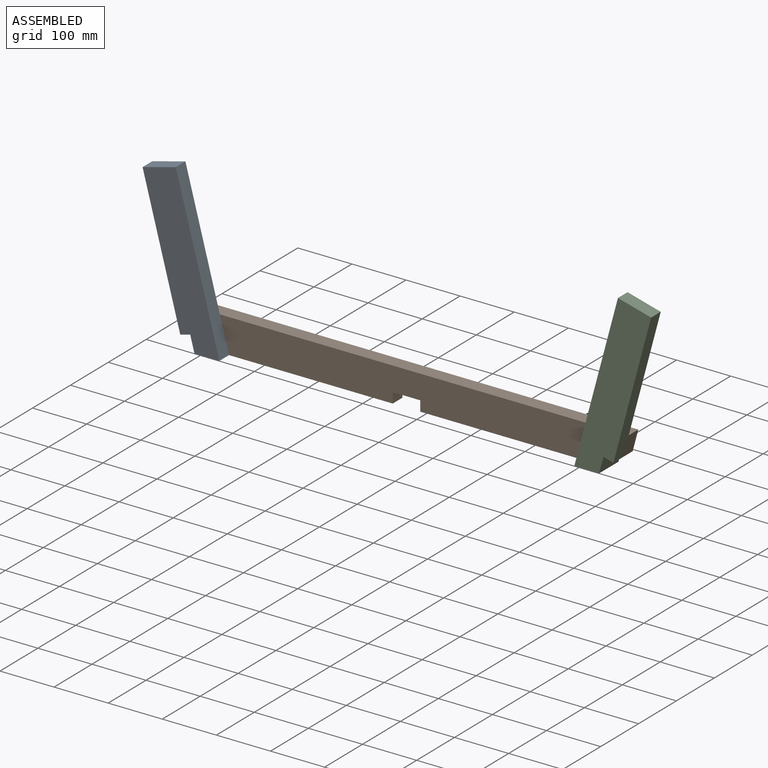
[diagram: assembled view]
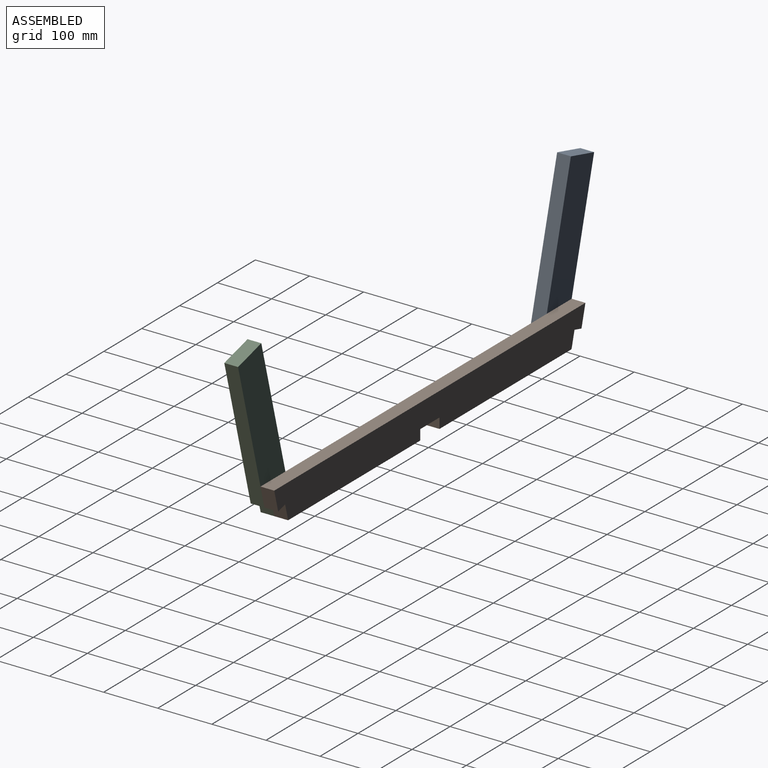
[diagram: assembled view, second angle]
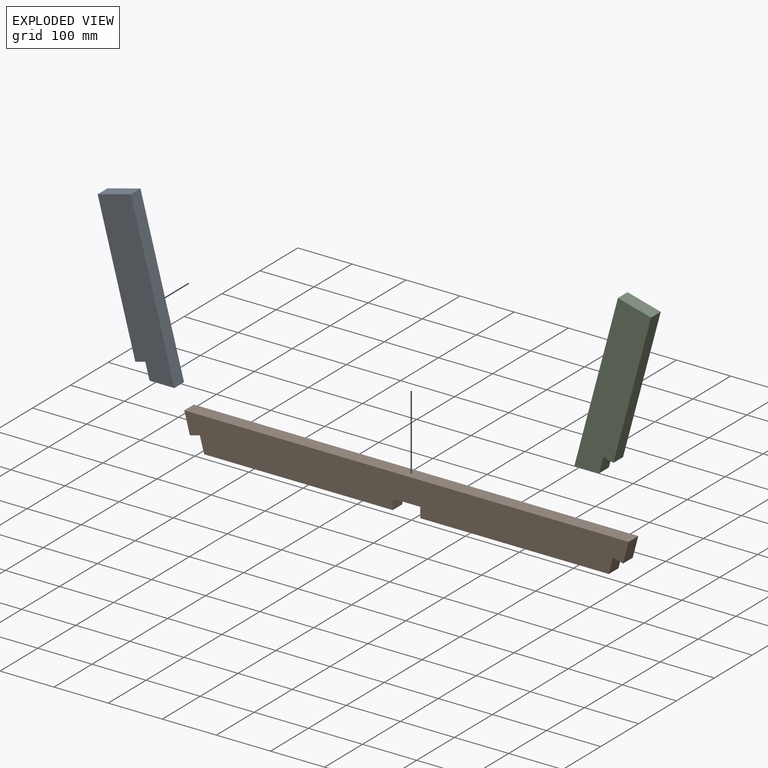
[diagram: exploded view]
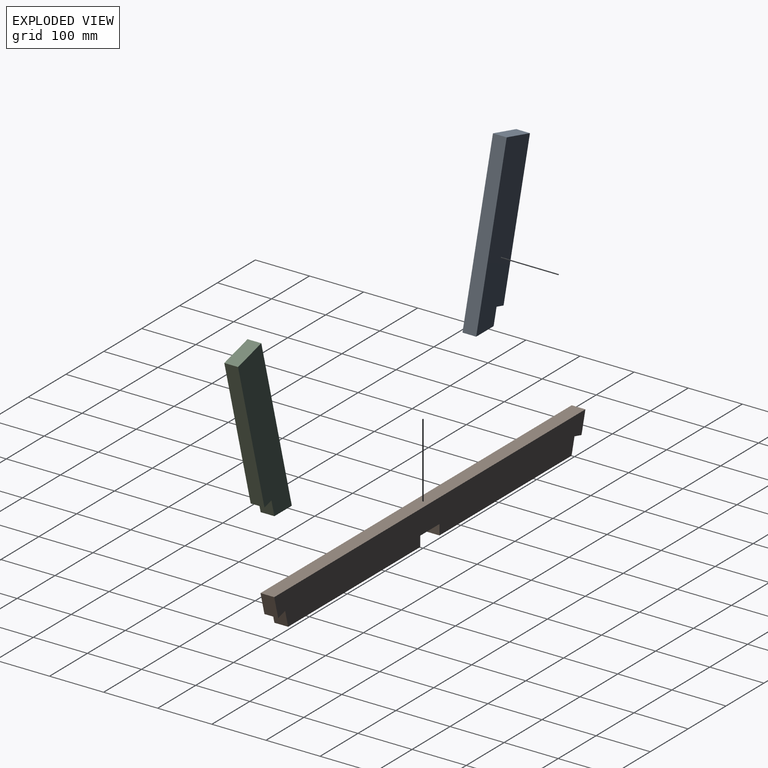
[diagram: exploded view, second angle]
ASSEMBLY  parts=3 mates=2
PART A: 8 faces, bbox 141.9x25.4x302.1 mm
  f0: plane 261.21x69.66mm, normal (-0.97,0,-0.26), area 6866.5mm2, adj f1,f5,f6,f7
  f1: plane 25.4x18.41mm, normal (0.26,0,-0.97), area 483.9mm2, adj f0,f2,f6,f7
  f2: plane 29.45x25.4mm, normal (-0.97,0,-0.26), area 774.2mm2, adj f1,f3,f6,f7
  f3: plane 46x25.4mm, normal (0,0,-1), area 1168.5mm2, adj f2,f4,f6,f7
  f4: plane 302.11x80.56mm, normal (0.97,0,0.26), area 7941.8mm2, adj f3,f5,f6,f7
  f5: plane 61.36x25.4mm, normal (-0.26,0,0.97), area 1612.9mm2, adj f0,f4,f6,f7
  f6: plane 302.11x141.92mm, normal (0,-1,0), area 18784.6mm2, adj f0,f1,f2,f3,f4,f5
  f7: plane 302.11x141.92mm, normal (0,1,0), area 18784.6mm2, adj f0,f1,f2,f3,f4,f5
PART B: 14 faces, bbox 821.3x25.4x63.5 mm
  f0: plane 348.58x25.4mm, normal (0,0,-1), area 8854mm2, adj f1,f11,f12,f13
  f1: plane 25.4x19.05mm, normal (1,0,0), area 483.9mm2, adj f0,f2,f12,f13
  f2: plane 50.8x25.4mm, normal (0,0,-1), area 1290.3mm2, adj f1,f3,f12,f13
  f3: plane 25.4x19.05mm, normal (-1,0,0), area 483.9mm2, adj f2,f4,f12,f13
  f4: plane 348.58x25.4mm, normal (0,0,-1), area 8854mm2, adj f3,f5,f12,f13
  f5: plane 29.45x25.4mm, normal (0.97,0,-0.26), area 774.2mm2, adj f4,f6,f12,f13
  f6: plane 25.4x18.41mm, normal (-0.26,0,-0.97), area 483.9mm2, adj f5,f7,f12,f13
  f7: plane 38.96x25.4mm, normal (0.97,0,-0.26), area 1024.1mm2, adj f6,f8,f12,f13
  f8: plane 821.27x25.4mm, normal (0,0,1), area 20860.2mm2, adj f7,f9,f12,f13
  f9: plane 38.96x25.4mm, normal (-0.97,0,-0.26), area 1024.1mm2, adj f8,f10,f12,f13
  f10: plane 25.4x18.41mm, normal (0.26,0,-0.97), area 483.9mm2, adj f9,f11,f12,f13
  f11: plane 29.45x25.4mm, normal (-0.97,0,-0.26), area 774.2mm2, adj f0,f10,f12,f13
  f12: plane 821.27x63.5mm, normal (0,-1,0), area 49042.9mm2, adj f0,f1,f2,f3,f4,f5,f6,f7
  f13: plane 821.27x63.5mm, normal (0,1,0), area 49042.9mm2, adj f0,f1,f2,f3,f4,f5,f6,f7
PART C: same geometry as A
PLACE A t=(0,-12.7,-19.05)mm
PLACE B t=(0,12.7,-19.05)mm
PLACE C rot(axis=(0,0,1),180deg) t=(0,-38.1,-19.05)mm
MATE fastened C.f6 <-> B.f12  axis (0,1,0) through (381.84,-12.7,10.4)mm
MATE fastened B.f12 <-> A.f7  axis (0,-1,0) through (-381.84,-12.7,10.4)mm
